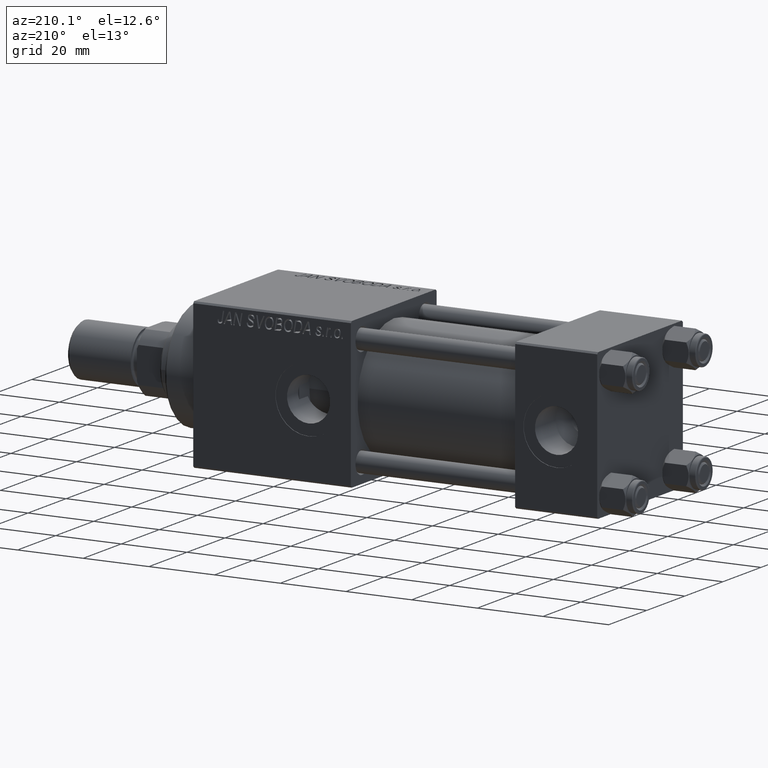
[diagram: clean part render]
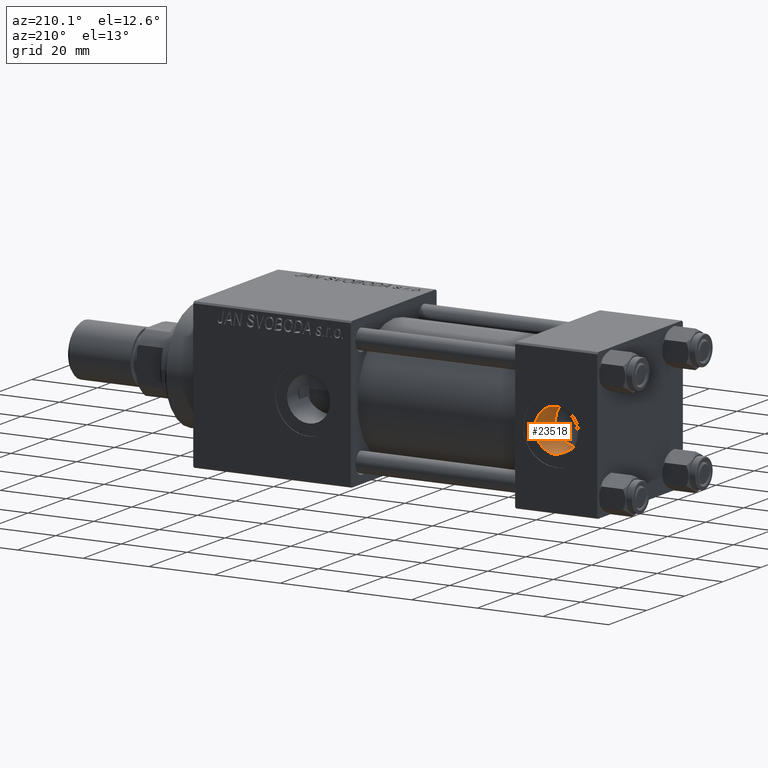
[diagram: same view with one face highlighted and labeled with its STEP entity id]
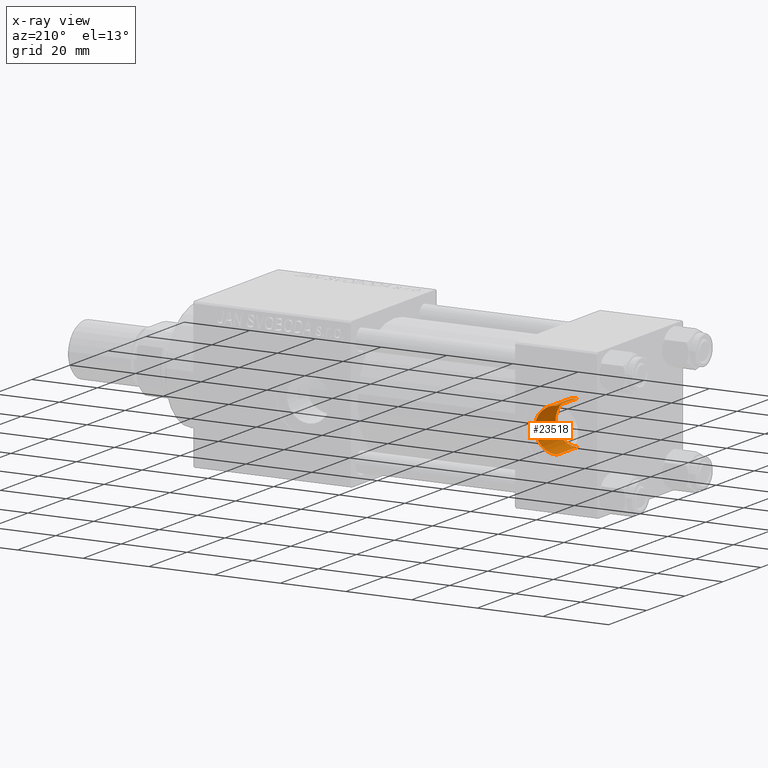
[diagram: x-ray of the same camera — body ghosted, the highlighted face saturated]
A machine part, auxiliary view. The second image highlights one B-rep face of the part: STEP entity #23518.
The next image is the same camera in x-ray: the body ghosted, the highlighted face saturated — about 0% of this face is hidden behind the body in this view.
In plain terms, the highlighted cylindrical surface (edge-blend (fillet) strip) has radius 6.58 mm, axis along (0, 1, 0).
Its self-contained STEP definition (entity closure, byte-faithful):
#1104 = DIRECTION ( 'NONE',  ( -0.000000000000000000, 1.000000000000000000, -0.000000000000000000 ) ) ;
#9777 = EDGE_CURVE ( 'NONE', #48645, #15398, #31340, .T. ) ;
#14896 = LINE ( 'NONE', #47382, #24933 ) ;
#15342 = DIRECTION ( 'NONE',  ( 0.000000000000000000, 0.000000000000000000, 1.000000000000000000 ) ) ;
#15398 = VERTEX_POINT ( 'NONE', #23761 ) ;
#16832 = EDGE_CURVE ( 'NONE', #15398, #30070, #14896, .T. ) ;
#19035 = EDGE_LOOP ( 'NONE', ( #44468, #33327, #21908, #25358 ) ) ;
#19323 = DIRECTION ( 'NONE',  ( 0.000000000000000000, 0.000000000000000000, 1.000000000000000000 ) ) ;
#20723 = FACE_OUTER_BOUND ( 'NONE', #19035, .T. ) ;
#21908 = ORIENTED_EDGE ( 'NONE', *, *, #16832, .T. ) ;
#23326 = DIRECTION ( 'NONE',  ( 0.000000000000000000, 1.000000000000000000, 0.000000000000000000 ) ) ;
#23518 = ADVANCED_FACE ( 'NONE', ( #20723 ), #36696, .F. ) ;
#23761 = CARTESIAN_POINT ( 'NONE',  ( 12.50000000000000000, 11.43999999999999773, 6.579999999999998295 ) ) ;
#23862 = VECTOR ( 'NONE', #1104, 1000.000000000000000 ) ;
#24448 = DIRECTION ( 'NONE',  ( 0.000000000000000000, 0.000000000000000000, 1.000000000000000000 ) ) ;
#24933 = VECTOR ( 'NONE', #47115, 1000.000000000000000 ) ;
#25358 = ORIENTED_EDGE ( 'NONE', *, *, #49585, .T. ) ;
#29390 = AXIS2_PLACEMENT_3D ( 'NONE', #34430, #29475, #24448 ) ;
#29475 = DIRECTION ( 'NONE',  ( -0.000000000000000000, 1.000000000000000000, -0.000000000000000000 ) ) ;
#30070 = VERTEX_POINT ( 'NONE', #34471 ) ;
#31340 = CIRCLE ( 'NONE', #36448, 6.579999999999998295 ) ;
#33327 = ORIENTED_EDGE ( 'NONE', *, *, #9777, .T. ) ;
#34430 = CARTESIAN_POINT ( 'NONE',  ( 12.50000000000000000, 11.50000000000000000, 0.000000000000000000 ) ) ;
#34471 = CARTESIAN_POINT ( 'NONE',  ( 12.50000000000000000, 22.30000000000000071, 6.579999999999998295 ) ) ;
#36448 = AXIS2_PLACEMENT_3D ( 'NONE', #44102, #47839, #15342 ) ;
#36696 = CYLINDRICAL_SURFACE ( 'NONE', #29390, 6.579999999999998295 ) ;
#37575 = CARTESIAN_POINT ( 'NONE',  ( 12.50000000000000000, 11.50000000000000000, -6.579999999999998295 ) ) ;
#39184 = AXIS2_PLACEMENT_3D ( 'NONE', #48635, #23326, #19323 ) ;
#41111 = VERTEX_POINT ( 'NONE', #41165 ) ;
#41165 = CARTESIAN_POINT ( 'NONE',  ( 12.50000000000000000, 22.30000000000000071, -6.579999999999998295 ) ) ;
#41571 = LINE ( 'NONE', #37575, #23862 ) ;
#44102 = CARTESIAN_POINT ( 'NONE',  ( 12.50000000000000000, 11.43999999999999773, 0.000000000000000000 ) ) ;
#44281 = CIRCLE ( 'NONE', #39184, 6.579999999999998295 ) ;
#44468 = ORIENTED_EDGE ( 'NONE', *, *, #52669, .F. ) ;
#47115 = DIRECTION ( 'NONE',  ( -0.000000000000000000, 1.000000000000000000, -0.000000000000000000 ) ) ;
#47382 = CARTESIAN_POINT ( 'NONE',  ( 12.50000000000000000, 11.50000000000000000, 6.579999999999998295 ) ) ;
#47793 = CARTESIAN_POINT ( 'NONE',  ( 12.50000000000000000, 11.43999999999999773, -6.579999999999998295 ) ) ;
#47839 = DIRECTION ( 'NONE',  ( -0.000000000000000000, -1.000000000000000000, -0.000000000000000000 ) ) ;
#48635 = CARTESIAN_POINT ( 'NONE',  ( 12.50000000000000000, 22.30000000000000071, 0.000000000000000000 ) ) ;
#48645 = VERTEX_POINT ( 'NONE', #47793 ) ;
#49585 = EDGE_CURVE ( 'NONE', #30070, #41111, #44281, .T. ) ;
#52669 = EDGE_CURVE ( 'NONE', #48645, #41111, #41571, .T. ) ;